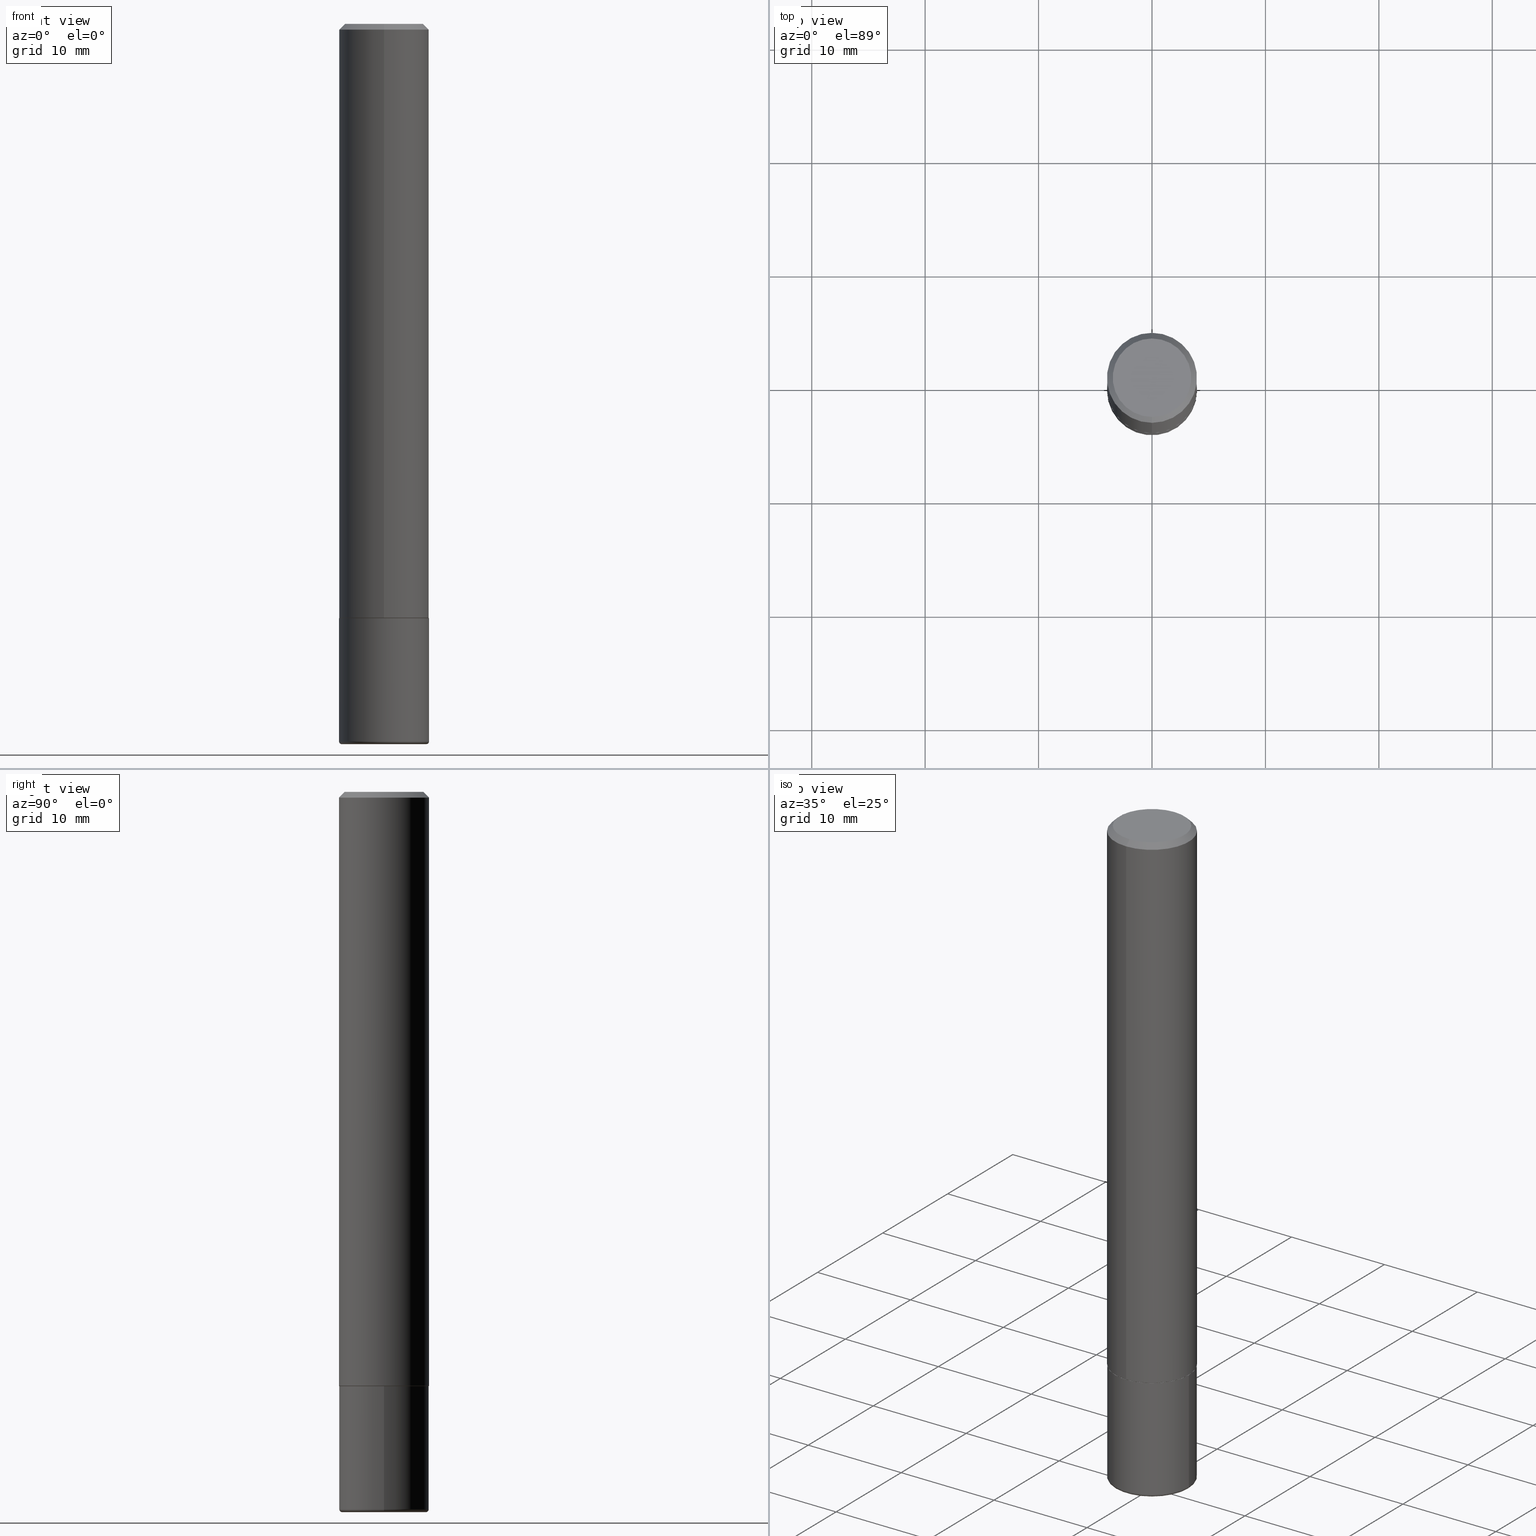
[diagram: canonical four-view strip — front | top / right | iso, engineering-drawing reading convention]
A machine part, canonical four-view strip (front | top / right | iso — engineering-drawing reading convention). The complete STEP part file that produces these views, byte-faithful:
ISO-10303-21;
HEADER;
FILE_DESCRIPTION (( 'STEP AP203' ),
    '1' );
FILE_NAME ('38799.STEP',
    '2024-03-03T13:24:34',
    ( '' ),
    ( '' ),
    'SwSTEP 2.0',
    'SolidWorks 2023',
    '' );
FILE_SCHEMA (( 'CONFIG_CONTROL_DESIGN' ));
ENDSEC;

DATA;
#1 = DATE_AND_TIME ( #260, #135 ) ;
#2 = DIRECTION ( 'NONE',  ( -2.446018690506352654E-29, 3.490693873197692271E-15, 1.000000000000000000 ) ) ;
#3 = CARTESIAN_POINT ( 'NONE',  ( 4.892037381012713785E-31, -6.981387746395396129E-17, -0.02000000000000003511 ) ) ;
#4 = CC_DESIGN_APPROVAL ( #121, ( #296 ) ) ;
#5 = DIRECTION ( 'NONE',  ( -6.982962677686266711E-15, -1.000000000000000000, 3.496765431890256131E-15 ) ) ;
#6 = DIRECTION ( 'NONE',  ( -2.445468806185136597E-29, 3.491481338843145583E-15, 1.000000000000000000 ) ) ;
#7 = PLANE ( 'NONE',  #30 ) ;
#8 = DIRECTION ( 'NONE',  ( -6.982962677686265922E-15, -1.000000000000000000, 3.496765431890251398E-15 ) ) ;
#9 = CIRCLE ( 'NONE', #117, 0.1562500000000002498 ) ;
#10 = VECTOR ( 'NONE', #58, 39.37007874015748143 ) ;
#11 = EDGE_LOOP ( 'NONE', ( #181, #82, #116, #55 ) ) ;
#12 = PERSON_AND_ORGANIZATION ( #175, #85 ) ;
#13 = ORIENTED_EDGE ( 'NONE', *, *, #61, .F. ) ;
#14 = CARTESIAN_POINT ( 'NONE',  ( 0.1462500000000000189, -9.749961638719478451E-15, -2.499999999999999556 ) ) ;
#15 = VERTEX_POINT ( 'NONE', #138 ) ;
#16 = CIRCLE ( 'NONE', #49, 0.1562500000000000278 ) ;
#17 = ORIENTED_EDGE ( 'NONE', *, *, #156, .T. ) ;
#18 = CONICAL_SURFACE ( 'NONE', #377, 0.1552499999999999991, 0.7853981633975336552 ) ;
#19 = EDGE_LOOP ( 'NONE', ( #276, #145, #20, #375 ) ) ;
#20 = ORIENTED_EDGE ( 'NONE', *, *, #91, .T. ) ;
#21 = EDGE_CURVE ( 'NONE', #403, #340, #16, .T. ) ;
#22 = VERTEX_POINT ( 'NONE', #206 ) ;
#23 = DIRECTION ( 'NONE',  ( 7.105427357601001859E-15, 1.000000000000000000, -3.491481338843145583E-15 ) ) ;
#24 = APPROVAL_ROLE ( '' ) ;
#25 = EDGE_LOOP ( 'NONE', ( #119, #44, #112, #414 ) ) ;
#26 = AXIS2_PLACEMENT_3D ( 'NONE', #363, #68, #372 ) ;
#27 = DIRECTION ( 'NONE',  ( -6.982962677686266711E-15, -1.000000000000000000, 3.490693873197693060E-15 ) ) ;
#28 = PERSON_AND_ORGANIZATION_ROLE ( 'creator' ) ;
#29 = CARTESIAN_POINT ( 'NONE',  ( 0.1562500000000000000, -1.091087918388479174E-15, 7.619026212181150377E-30 ) ) ;
#30 = AXIS2_PLACEMENT_3D ( 'NONE', #230, #100, #70 ) ;
#31 = CIRCLE ( 'NONE', #26, 0.009999999999999790307 ) ;
#32 = AXIS2_PLACEMENT_3D ( 'NONE', #390, #261, #386 ) ;
#33 =( LENGTH_UNIT ( ) NAMED_UNIT ( * ) SI_UNIT ( $, .METRE. ) );
#34 = DIRECTION ( 'NONE',  ( -2.446018690506352654E-29, 3.490693873197692271E-15, 1.000000000000000000 ) ) ;
#35 = DIRECTION ( 'NONE',  ( -2.446018690506352654E-29, 3.490693873197692271E-15, 1.000000000000000000 ) ) ;
#36 = CARTESIAN_POINT ( 'NONE',  ( 1.103117597267605822E-15, 0.1552499999999928104, -2.062500000000000888 ) ) ;
#37 = EDGE_LOOP ( 'NONE', ( #139, #381 ) ) ;
#38 = CARTESIAN_POINT ( 'NONE',  ( 0.000000000000000000, 0.000000000000000000, 0.000000000000000000 ) ) ;
#39 = DIRECTION ( 'NONE',  ( 1.000000000000000000, -6.982962677686269077E-15, 0.000000000000000000 ) ) ;
#40 = APPROVAL_ROLE ( '' ) ;
#41 = DIRECTION ( 'NONE',  ( -6.982962677686265922E-15, -1.000000000000000000, 3.490693873197692271E-15 ) ) ;
#42 = ADVANCED_FACE ( 'NONE', ( #264 ), #7, .F. ) ;
#43 = CARTESIAN_POINT ( 'NONE',  ( -0.1562499999999999167, -7.583565509094276753E-15, -2.489999999999999769 ) ) ;
#44 = ORIENTED_EDGE ( 'NONE', *, *, #183, .T. ) ;
#45 = AXIS2_PLACEMENT_3D ( 'NONE', #172, #399, #103 ) ;
#46 = DATE_TIME_ROLE ( 'creation_date' ) ;
#47 = VERTEX_POINT ( 'NONE', #43 ) ;
#48 = DIRECTION ( 'NONE',  ( -6.982962677686265922E-15, -1.000000000000000000, 3.519288880726909138E-15 ) ) ;
#49 = AXIS2_PLACEMENT_3D ( 'NONE', #293, #35, #268 ) ;
#50 = ORIENTED_EDGE ( 'NONE', *, *, #311, .T. ) ;
#51 = CIRCLE ( 'NONE', #168, 0.1562500000000000000 ) ;
#52 = VERTEX_POINT ( 'NONE', #392 ) ;
#53 = DIRECTION ( 'NONE',  ( -6.982962677686265922E-15, -1.000000000000000000, 3.490693873197692271E-15 ) ) ;
#54 = CARTESIAN_POINT ( 'NONE',  ( 6.089217327400989947E-29, -8.693788533719431716E-15, -2.489999999999999769 ) ) ;
#55 = ORIENTED_EDGE ( 'NONE', *, *, #250, .F. ) ;
#56 = SECURITY_CLASSIFICATION ( '', '', #342 ) ;
#57 = DIRECTION ( 'NONE',  ( 2.438088387897960049E-29, -3.491481338843145188E-15, -1.000000000000000000 ) ) ;
#58 = DIRECTION ( 'NONE',  ( -2.445468806185136877E-29, 3.491481338843145188E-15, 1.000000000000000000 ) ) ;
#59 = VECTOR ( 'NONE', #235, 39.37007874015748143 ) ;
#60 = PLANE ( 'NONE',  #413 ) ;
#61 = EDGE_CURVE ( 'NONE', #47, #246, #376, .T. ) ;
#62 = CARTESIAN_POINT ( 'NONE',  ( 0.1562499999999999167, -9.784876452107911678E-15, -2.489999999999999769 ) ) ;
#63 = EDGE_CURVE ( 'NONE', #22, #366, #9, .T. ) ;
#64 = CARTESIAN_POINT ( 'NONE',  ( -0.1562500000000000000, -6.837261372916553606E-15, -2.062500000000000000 ) ) ;
#65 = CYLINDRICAL_SURFACE ( 'NONE', #189, 0.1562500000000000000 ) ;
#66 = CARTESIAN_POINT ( 'NONE',  ( 1.106670310946407312E-15, 0.1552499999999928104, -2.062500000000000888 ) ) ;
#67 = TOROIDAL_SURFACE ( 'NONE', #330, 0.1462500000000000189, 0.009999999999999807654 ) ;
#68 = DIRECTION ( 'NONE',  ( -6.982962677686266711E-15, -1.000000000000000000, 3.491481338843145583E-15 ) ) ;
#69 = CALENDAR_DATE ( 2024, 3, 3 ) ;
#70 = DIRECTION ( 'NONE',  ( -1.000000000000000000, 6.982962677686265922E-15, -4.876176775795935793E-29 ) ) ;
#71 = CC_DESIGN_PERSON_AND_ORGANIZATION_ASSIGNMENT ( #314, #118, ( #205 ) ) ;
#72 = AXIS2_PLACEMENT_3D ( 'NONE', #198, #299, #96 ) ;
#73 =( NAMED_UNIT ( * ) PLANE_ANGLE_UNIT ( ) SI_UNIT ( $, .RADIAN. ) );
#74 = ADVANCED_FACE ( 'NONE', ( #173 ), #67, .T. ) ;
#75 = ORIENTED_EDGE ( 'NONE', *, *, #91, .F. ) ;
#76 = CIRCLE ( 'NONE', #368, 0.1552499999999999991 ) ;
#77 = PERSON_AND_ORGANIZATION ( #175, #85 ) ;
#78 = ORIENTED_EDGE ( 'NONE', *, *, #63, .T. ) ;
#79 = AXIS2_PLACEMENT_3D ( 'NONE', #416, #266, #129 ) ;
#80 = ORIENTED_EDGE ( 'NONE', *, *, #183, .F. ) ;
#81 = APPROVAL ( #208, 'UNSPECIFIED' ) ;
#82 = ORIENTED_EDGE ( 'NONE', *, *, #127, .T. ) ;
#83 = APPROVAL_DATE_TIME ( #1, #121 ) ;
#84 = VECTOR ( 'NONE', #136, 39.37007874015748143 ) ;
#85 = ORGANIZATION ( 'UNSPECIFIED', 'UNSPECIFIED', '' ) ;
#86 = FACE_OUTER_BOUND ( 'NONE', #312, .T. ) ;
#87 = DIRECTION ( 'NONE',  ( -2.445468806185136877E-29, 3.491481338843145188E-15, 1.000000000000000000 ) ) ;
#88 = DIRECTION ( 'NONE',  ( -2.446018690506352654E-29, 3.490693873197692271E-15, 1.000000000000000000 ) ) ;
#89 = FACE_OUTER_BOUND ( 'NONE', #365, .T. ) ;
#90 = CARTESIAN_POINT ( 'NONE',  ( 2.624387123415071162E-48, -3.745242049114306587E-34, -1.072921941929966994E-19 ) ) ;
#91 = EDGE_CURVE ( 'NONE', #22, #340, #383, .T. ) ;
#92 = DIRECTION ( 'NONE',  ( -6.982962677686266711E-15, -1.000000000000000000, 3.490693873197693060E-15 ) ) ;
#93 = ORIENTED_EDGE ( 'NONE', *, *, #159, .F. ) ;
#94 = LINE ( 'NONE', #411, #10 ) ;
#95 = CARTESIAN_POINT ( 'NONE',  ( 2.624387123415071162E-48, -3.745242049114306587E-34, -1.072921941929966994E-19 ) ) ;
#96 = DIRECTION ( 'NONE',  ( 1.000000000000000000, -6.982962677686264344E-15, 0.000000000000000000 ) ) ;
#97 = EDGE_CURVE ( 'NONE', #239, #187, #389, .T. ) ;
#98 = DIRECTION ( 'NONE',  ( 1.000000000000000000, -6.982962677686269077E-15, 0.000000000000000000 ) ) ;
#99 = VECTOR ( 'NONE', #412, 39.37007874015748143 ) ;
#100 = DIRECTION ( 'NONE',  ( 2.438088387897960049E-29, -3.491481338843145188E-15, -1.000000000000000000 ) ) ;
#101 = PERSON_AND_ORGANIZATION ( #175, #85 ) ;
#102 = DIRECTION ( 'NONE',  ( 0.000000000000000000, 0.000000000000000000, 1.000000000000000000 ) ) ;
#103 = DIRECTION ( 'NONE',  ( 1.000000000000000000, -6.982962677686266711E-15, 4.876176775795936353E-29 ) ) ;
#104 = ORIENTED_EDGE ( 'NONE', *, *, #218, .F. ) ;
#105 = ADVANCED_FACE ( 'NONE', ( #188 ), #251, .T. ) ;
#106 = CARTESIAN_POINT ( 'NONE',  ( 9.514286648347541549E-16, 0.1362500000000000377, -4.756606863202822775E-16 ) ) ;
#107 = EDGE_CURVE ( 'NONE', #246, #52, #122, .T. ) ;
#108 = CALENDAR_DATE ( 2024, 3, 3 ) ;
#109 = FACE_OUTER_BOUND ( 'NONE', #25, .T. ) ;
#110 = AXIS2_PLACEMENT_3D ( 'NONE', #406, #255, #169 ) ;
#111 = CC_DESIGN_APPROVAL ( #81, ( #205 ) ) ;
#112 = ORIENTED_EDGE ( 'NONE', *, *, #63, .F. ) ;
#113 = ORIENTED_EDGE ( 'NONE', *, *, #170, .F. ) ;
#114 = ADVANCED_FACE ( 'NONE', ( #224 ), #161, .T. ) ;
#115 = EDGE_LOOP ( 'NONE', ( #402, #217 ) ) ;
#116 = ORIENTED_EDGE ( 'NONE', *, *, #245, .F. ) ;
#117 = AXIS2_PLACEMENT_3D ( 'NONE', #271, #300, #238 ) ;
#118 = PERSON_AND_ORGANIZATION_ROLE ( 'design_supplier' ) ;
#119 = ORIENTED_EDGE ( 'NONE', *, *, #174, .T. ) ;
#120 = ORIENTED_EDGE ( 'NONE', *, *, #146, .F. ) ;
#121 = APPROVAL ( #415, 'UNSPECIFIED' ) ;
#122 = LINE ( 'NONE', #29, #178 ) ;
#123 = DIMENSIONAL_EXPONENTS ( 1.000000000000000000, 0.000000000000000000, 0.000000000000000000, 0.000000000000000000, 0.000000000000000000, 0.000000000000000000, 0.000000000000000000 ) ;
#124 = VECTOR ( 'NONE', #204, 39.37007874015748143 ) ;
#125 = FACE_OUTER_BOUND ( 'NONE', #19, .T. ) ;
#126 = CARTESIAN_POINT ( 'NONE',  ( 0.000000000000000000, 0.000000000000000000, 0.000000000000000000 ) ) ;
#127 = EDGE_CURVE ( 'NONE', #373, #47, #286, .T. ) ;
#128 = COORDINATED_UNIVERSAL_TIME_OFFSET ( 5, 0, .BEHIND. ) ;
#129 = DIRECTION ( 'NONE',  ( 1.000000000000000000, -6.982962677686269077E-15, 0.000000000000000000 ) ) ;
#130 = LENGTH_MEASURE_WITH_UNIT ( LENGTH_MEASURE( 0.02539999999999999897 ), #33 );
#131 = CARTESIAN_POINT ( 'NONE',  ( 1.021258291611616861E-15, 0.1362500000000000377, -4.757143324173787538E-16 ) ) ;
#132 = AXIS2_PLACEMENT_3D ( 'NONE', #185, #23, #313 ) ;
#133 = CYLINDRICAL_SURFACE ( 'NONE', #336, 0.1562500000000001388 ) ;
#134 = CARTESIAN_POINT ( 'NONE',  ( 5.044913549169352611E-29, -7.199556113470241419E-15, -2.062500000000000000 ) ) ;
#135 = LOCAL_TIME ( 8, 24, 34.00000000000000000, #128 ) ;
#136 = DIRECTION ( 'NONE',  ( 5.024295867788490741E-15, 0.7071067811866103003, 0.7071067811864847341 ) ) ;
#137 = CARTESIAN_POINT ( 'NONE',  ( -1.003347832174086278E-15, -0.1362500000000000377, 4.754997480289927501E-16 ) ) ;
#138 = CARTESIAN_POINT ( 'NONE',  ( -1.084104955710742475E-15, -0.1552500000000072156, -2.062499999999999556 ) ) ;
#139 = ORIENTED_EDGE ( 'NONE', *, *, #174, .F. ) ;
#140 = CARTESIAN_POINT ( 'NONE',  ( 0.000000000000000000, 0.000000000000000000, 0.000000000000000000 ) ) ;
#141 = FACE_OUTER_BOUND ( 'NONE', #37, .T. ) ;
#142 = AXIS2_PLACEMENT_3D ( 'NONE', #126, #194, #53 ) ;
#143 = APPROVAL_PERSON_ORGANIZATION ( #77, #323, #24 ) ;
#144 = ADVANCED_FACE ( 'NONE', ( #154 ), #405, .T. ) ;
#145 = ORIENTED_EDGE ( 'NONE', *, *, #146, .T. ) ;
#146 = EDGE_CURVE ( 'NONE', #366, #22, #341, .T. ) ;
#147 = PRODUCT_RELATED_PRODUCT_CATEGORY ( 'detail', '', ( #274 ) ) ;
#148 = CLOSED_SHELL ( 'NONE', ( #180, #74, #42, #231, #144, #285 ) ) ;
#149 = LOCAL_TIME ( 8, 24, 34.00000000000000000, #400 ) ;
#150 = ORIENTED_EDGE ( 'NONE', *, *, #382, .F. ) ;
#151 = ORIENTED_EDGE ( 'NONE', *, *, #21, .T. ) ;
#152 = ADVANCED_FACE ( 'NONE', ( #141 ), #60, .F. ) ;
#153 = VERTEX_POINT ( 'NONE', #66 ) ;
#154 = FACE_OUTER_BOUND ( 'NONE', #308, .T. ) ;
#155 = CIRCLE ( 'NONE', #79, 0.1562500000000000000 ) ;
#156 = EDGE_CURVE ( 'NONE', #15, #22, #209, .T. ) ;
#157 = DIRECTION ( 'NONE',  ( 6.982962677686266711E-15, 1.000000000000000000, -3.496765431890256131E-15 ) ) ;
#158 = COORDINATED_UNIVERSAL_TIME_OFFSET ( 5, 0, .BEHIND. ) ;
#159 = EDGE_CURVE ( 'NONE', #340, #403, #257, .T. ) ;
#160 = CARTESIAN_POINT ( 'NONE',  ( 1.263551563285417854E-28, 6.109479132827826125E-16, -2.500000000000000000 ) ) ;
#161 = CYLINDRICAL_SURFACE ( 'NONE', #142, 0.1562500000000001388 ) ;
#162 = ORIENTED_EDGE ( 'NONE', *, *, #186, .F. ) ;
#163 = PLANE ( 'NONE',  #225 ) ;
#164 = CARTESIAN_POINT ( 'NONE',  ( -0.1462500000000000189, -7.636550052576496041E-15, -2.499999999999999556 ) ) ;
#165 = CARTESIAN_POINT ( 'NONE',  ( 1.091087918388479765E-15, 0.1562499999999999722, -0.02000000000000057981 ) ) ;
#166 = DIRECTION ( 'NONE',  ( -4.937700262164969294E-15, -0.7071067811866054154, 0.7071067811864896191 ) ) ;
#167 = EDGE_LOOP ( 'NONE', ( #404, #211, #259, #150 ) ) ;
#168 = AXIS2_PLACEMENT_3D ( 'NONE', #171, #6, #263 ) ;
#169 = DIRECTION ( 'NONE',  ( 1.000000000000000000, -6.982962677686265922E-15, 4.883557194083112340E-29 ) ) ;
#170 = EDGE_CURVE ( 'NONE', #373, #269, #277, .T. ) ;
#171 = CARTESIAN_POINT ( 'NONE',  ( 6.089217327400989947E-29, -8.693788533719431716E-15, -2.489999999999999769 ) ) ;
#172 = CARTESIAN_POINT ( 'NONE',  ( 0.000000000000000000, 0.000000000000000000, 0.000000000000000000 ) ) ;
#173 = FACE_OUTER_BOUND ( 'NONE', #11, .T. ) ;
#174 = EDGE_CURVE ( 'NONE', #15, #153, #307, .T. ) ;
#175 = PERSON ( 'UNSPECIFIED', 'UNSPECIFIED', 'UNSPECIFIED', ('UNSPECIFIED'), ('UNSPECIFIED'), ('UNSPECIFIED') ) ;
#176 = ORIENTED_EDGE ( 'NONE', *, *, #210, .T. ) ;
#177 = CALENDAR_DATE ( 2024, 3, 3 ) ;
#178 = VECTOR ( 'NONE', #87, 39.37007874015748143 ) ;
#179 = ORIENTED_EDGE ( 'NONE', *, *, #245, .T. ) ;
#180 = ADVANCED_FACE ( 'NONE', ( #297 ), #391, .T. ) ;
#181 = ORIENTED_EDGE ( 'NONE', *, *, #401, .T. ) ;
#182 = COORDINATED_UNIVERSAL_TIME_OFFSET ( 5, 0, .BEHIND. ) ;
#183 = EDGE_CURVE ( 'NONE', #153, #366, #197, .T. ) ;
#184 = ORIENTED_EDGE ( 'NONE', *, *, #401, .F. ) ;
#185 = CARTESIAN_POINT ( 'NONE',  ( -0.1462500000000000189, -7.654619782670285257E-15, -2.489999999999999769 ) ) ;
#186 = EDGE_CURVE ( 'NONE', #187, #340, #360, .T. ) ;
#187 = VERTEX_POINT ( 'NONE', #137 ) ;
#188 = FACE_OUTER_BOUND ( 'NONE', #384, .T. ) ;
#189 = AXIS2_PLACEMENT_3D ( 'NONE', #38, #418, #388 ) ;
#190 = LOCAL_TIME ( 8, 24, 34.00000000000000000, #199 ) ;
#191 = DIRECTION ( 'NONE',  ( -2.446018690506352654E-29, 3.490693873197692271E-15, 1.000000000000000000 ) ) ;
#192 = ORIENTED_EDGE ( 'NONE', *, *, #107, .F. ) ;
#193 = CARTESIAN_POINT ( 'NONE',  ( 5.044913549169352611E-29, -7.199556113470241419E-15, -2.062500000000000000 ) ) ;
#194 = DIRECTION ( 'NONE',  ( -2.446018690506352654E-29, 3.490693873197692271E-15, 1.000000000000000000 ) ) ;
#195 = AXIS2_PLACEMENT_3D ( 'NONE', #358, #201, #39 ) ;
#196 = CONICAL_SURFACE ( 'NONE', #294, 0.1552499999999999991, 0.7853981633975336552 ) ;
#197 = LINE ( 'NONE', #36, #84 ) ;
#198 = CARTESIAN_POINT ( 'NONE',  ( 6.113672015462840371E-29, -8.728703347107863365E-15, -2.499999999999999556 ) ) ;
#199 = COORDINATED_UNIVERSAL_TIME_OFFSET ( 5, 0, .BEHIND. ) ;
#200 = DIRECTION ( 'NONE',  ( -2.446018690506352654E-29, 3.490693873197692271E-15, 1.000000000000000000 ) ) ;
#201 = DIRECTION ( 'NONE',  ( -2.445468806185136597E-29, 3.491481338843145583E-15, 1.000000000000000000 ) ) ;
#202 = EDGE_CURVE ( 'NONE', #187, #239, #397, .T. ) ;
#203 = CLOSED_SHELL ( 'NONE', ( #275, #114, #348, #105, #334, #284, #152, #256 ) ) ;
#204 = DIRECTION ( 'NONE',  ( 4.937700262164542520E-15, 0.7071067811865443531, -0.7071067811865506814 ) ) ;
#205 = PRODUCT_DEFINITION_FORMATION_WITH_SPECIFIED_SOURCE ( 'ANY', '', #274, .NOT_KNOWN. ) ;
#206 = CARTESIAN_POINT ( 'NONE',  ( -1.091087918388430264E-15, -0.1562500000000074385, -2.061499999999999666 ) ) ;
#207 = ADVANCED_BREP_SHAPE_REPRESENTATION ( '38799', ( #234, #369, #327 ), #273 ) ;
#208 = APPROVAL_STATUS ( 'not_yet_approved' ) ;
#209 = LINE ( 'NONE', #272, #346 ) ;
#210 = EDGE_CURVE ( 'NONE', #153, #15, #76, .T. ) ;
#211 = ORIENTED_EDGE ( 'NONE', *, *, #61, .T. ) ;
#212 = DATE_AND_TIME ( #69, #190 ) ;
#213 = DIRECTION ( 'NONE',  ( 1.000000000000000000, 0.000000000000000000, 0.000000000000000000 ) ) ;
#214 = AXIS2_PLACEMENT_3D ( 'NONE', #236, #200, #333 ) ;
#215 = CALENDAR_DATE ( 2024, 3, 3 ) ;
#216 = DIRECTION ( 'NONE',  ( -2.446018690506352654E-29, 3.490693873197692271E-15, 1.000000000000000000 ) ) ;
#217 = ORIENTED_EDGE ( 'NONE', *, *, #382, .T. ) ;
#218 = EDGE_CURVE ( 'NONE', #239, #403, #229, .T. ) ;
#219 = AXIS2_PLACEMENT_3D ( 'NONE', #270, #396, #98 ) ;
#220 = ORIENTED_EDGE ( 'NONE', *, *, #170, .T. ) ;
#221 = ORIENTED_EDGE ( 'NONE', *, *, #97, .F. ) ;
#222 = AXIS2_PLACEMENT_3D ( 'NONE', #95, #34, #92 ) ;
#223 = DIRECTION ( 'NONE',  ( -2.446018690506352654E-29, 3.490693873197692271E-15, 1.000000000000000000 ) ) ;
#224 = FACE_OUTER_BOUND ( 'NONE', #278, .T. ) ;
#225 = AXIS2_PLACEMENT_3D ( 'NONE', #160, #57, #349 ) ;
#226 = DIRECTION ( 'NONE',  ( 2.446018690506352654E-29, -3.490693873197692271E-15, -1.000000000000000000 ) ) ;
#227 = DIRECTION ( 'NONE',  ( -6.982962677686265922E-15, -1.000000000000000000, 3.519288880726909138E-15 ) ) ;
#228 = DIRECTION ( 'NONE',  ( 6.982962677686266711E-15, 1.000000000000000000, -3.496765431890256131E-15 ) ) ;
#229 = LINE ( 'NONE', #165, #124 ) ;
#230 = CARTESIAN_POINT ( 'NONE',  ( 5.043779412756844791E-29, -7.201180261363988578E-15, -2.062500000000000000 ) ) ;
#231 = ADVANCED_FACE ( 'NONE', ( #290 ), #65, .T. ) ;
#232 = EDGE_LOOP ( 'NONE', ( #179, #280, #344, #192 ) ) ;
#233 = CARTESIAN_POINT ( 'NONE',  ( 5.044913549169352611E-29, -7.199556113470241419E-15, -2.062500000000000000 ) ) ;
#234 = MANIFOLD_SOLID_BREP ( 'Body-Move/Copy2[1]', #148 ) ;
#235 = DIRECTION ( 'NONE',  ( -4.851104656540958753E-15, -0.7071067811865492381, -0.7071067811865457964 ) ) ;
#236 = CARTESIAN_POINT ( 'NONE',  ( 5.044913549169352611E-29, -7.199556113470241419E-15, -2.062500000000000000 ) ) ;
#237 = APPROVAL_PERSON_ORGANIZATION ( #356, #121, #345 ) ;
#238 = DIRECTION ( 'NONE',  ( -6.982962677686265922E-15, -1.000000000000000000, 3.496765431890251398E-15 ) ) ;
#239 = VERTEX_POINT ( 'NONE', #131 ) ;
#240 = ORIENTED_EDGE ( 'NONE', *, *, #218, .T. ) ;
#241 = DATE_AND_TIME ( #108, #149 ) ;
#242 = CONICAL_SURFACE ( 'NONE', #331, 0.1562500000000000278, 0.7853981633974472798 ) ;
#243 = APPROVAL_PERSON_ORGANIZATION ( #101, #81, #40 ) ;
#244 = APPLICATION_CONTEXT ( 'configuration controlled 3d designs of mechanical parts and assemblies' ) ;
#245 = EDGE_CURVE ( 'NONE', #246, #47, #51, .T. ) ;
#246 = VERTEX_POINT ( 'NONE', #62 ) ;
#247 = EDGE_CURVE ( 'NONE', #52, #395, #302, .T. ) ;
#248 = DATE_AND_TIME ( #215, #378 ) ;
#249 = EDGE_LOOP ( 'NONE', ( #310, #339, #315, #104 ) ) ;
#250 = EDGE_CURVE ( 'NONE', #269, #246, #31, .T. ) ;
#251 = CONICAL_SURFACE ( 'NONE', #355, 0.1562500000000000278, 0.7853981633974472798 ) ;
#252 = DATE_TIME_ROLE ( 'classification_date' ) ;
#253 = ORIENTED_EDGE ( 'NONE', *, *, #127, .F. ) ;
#254 = CC_DESIGN_DATE_AND_TIME_ASSIGNMENT ( #248, #252, ( #56 ) ) ;
#255 = DIRECTION ( 'NONE',  ( -2.445468806185136597E-29, 3.491481338843145583E-15, 1.000000000000000000 ) ) ;
#256 = ADVANCED_FACE ( 'NONE', ( #364 ), #374, .F. ) ;
#257 = CIRCLE ( 'NONE', #385, 0.1562500000000000278 ) ;
#258 = CARTESIAN_POINT ( 'NONE',  ( -1.071952812151801412E-15, -0.1562500000000001110, -0.01999999999999948694 ) ) ;
#259 = ORIENTED_EDGE ( 'NONE', *, *, #107, .T. ) ;
#260 = CALENDAR_DATE ( 2024, 3, 3 ) ;
#261 = DIRECTION ( 'NONE',  ( -2.445468806185136597E-29, 3.491481338843145583E-15, 1.000000000000000000 ) ) ;
#262 = PRODUCT_DEFINITION_SHAPE ( 'NONE', 'NONE',  #296 ) ;
#263 = DIRECTION ( 'NONE',  ( 1.000000000000000000, -6.982962677686269077E-15, 0.000000000000000000 ) ) ;
#264 = FACE_OUTER_BOUND ( 'NONE', #115, .T. ) ;
#265 = AXIS2_PLACEMENT_3D ( 'NONE', #90, #88, #27 ) ;
#266 = DIRECTION ( 'NONE',  ( -2.445468806185136597E-29, 3.491481338843145583E-15, 1.000000000000000000 ) ) ;
#267 = DIRECTION ( 'NONE',  ( -2.446018690506352373E-29, 3.490693873197692271E-15, 1.000000000000000000 ) ) ;
#268 = DIRECTION ( 'NONE',  ( -6.982962677686266711E-15, -1.000000000000000000, 3.496765431890256131E-15 ) ) ;
#269 = VERTEX_POINT ( 'NONE', #14 ) ;
#270 = CARTESIAN_POINT ( 'NONE',  ( 5.043779412756844791E-29, -7.201180261363988578E-15, -2.062500000000000000 ) ) ;
#271 = CARTESIAN_POINT ( 'NONE',  ( 5.042467530478845729E-29, -7.196065419597043772E-15, -2.061500000000000110 ) ) ;
#272 = CARTESIAN_POINT ( 'NONE',  ( -1.084104955710742475E-15, -0.1552500000000072156, -2.062499999999999556 ) ) ;
#273 =( GEOMETRIC_REPRESENTATION_CONTEXT ( 3 ) GLOBAL_UNCERTAINTY_ASSIGNED_CONTEXT ( ( #281 ) ) GLOBAL_UNIT_ASSIGNED_CONTEXT ( ( #357, #73, #393 ) ) REPRESENTATION_CONTEXT ( 'NONE', 'WORKASPACE' ) );
#274 = PRODUCT ( '38799', '38799', '', ( #337 ) ) ;
#275 = ADVANCED_FACE ( 'NONE', ( #109 ), #196, .T. ) ;
#276 = ORIENTED_EDGE ( 'NONE', *, *, #311, .F. ) ;
#277 = CIRCLE ( 'NONE', #72, 0.1462500000000000189 ) ;
#278 = EDGE_LOOP ( 'NONE', ( #78, #50, #93, #75 ) ) ;
#279 = PERSON_AND_ORGANIZATION_ROLE ( 'creator' ) ;
#280 = ORIENTED_EDGE ( 'NONE', *, *, #319, .T. ) ;
#281 = UNCERTAINTY_MEASURE_WITH_UNIT (LENGTH_MEASURE( 1.000000000000000082E-05 ), #357, 'distance_accuracy_value', 'NONE');
#282 = CARTESIAN_POINT ( 'NONE',  ( 5.042467530478845729E-29, -7.196065419597043772E-15, -2.061500000000000110 ) ) ;
#283 = DESIGN_CONTEXT ( 'detailed design', #332, 'design' ) ;
#284 = ADVANCED_FACE ( 'NONE', ( #86 ), #18, .T. ) ;
#285 = ADVANCED_FACE ( 'NONE', ( #89 ), #163, .T. ) ;
#286 = CIRCLE ( 'NONE', #132, 0.009999999999999790307 ) ;
#287 = ORIENTED_EDGE ( 'NONE', *, *, #97, .T. ) ;
#288 = FACE_OUTER_BOUND ( 'NONE', #249, .T. ) ;
#289 = DIRECTION ( 'NONE',  ( -2.445468806185136597E-29, 3.491481338843145583E-15, 1.000000000000000000 ) ) ;
#290 = FACE_OUTER_BOUND ( 'NONE', #167, .T. ) ;
#291 = CARTESIAN_POINT ( 'NONE',  ( 1.110223024625157329E-15, 0.1562500000000001388, -5.454209176871399228E-16 ) ) ;
#292 = DIRECTION ( 'NONE',  ( -2.446018690506352654E-29, 3.490693873197692271E-15, 1.000000000000000000 ) ) ;
#293 = CARTESIAN_POINT ( 'NONE',  ( 4.892037381012713785E-31, -6.981387746395396129E-17, -0.02000000000000003511 ) ) ;
#294 = AXIS2_PLACEMENT_3D ( 'NONE', #233, #216, #48 ) ;
#295 = CC_DESIGN_APPROVAL ( #323, ( #56 ) ) ;
#296 = PRODUCT_DEFINITION ( 'UNKNOWN', '', #205, #283 ) ;
#297 = FACE_OUTER_BOUND ( 'NONE', #232, .T. ) ;
#298 = APPLICATION_PROTOCOL_DEFINITION ( 'international standard', 'config_control_design', 1994, #244 ) ;
#299 = DIRECTION ( 'NONE',  ( -2.445468806185136597E-29, 3.491481338843145583E-15, 1.000000000000000000 ) ) ;
#300 = DIRECTION ( 'NONE',  ( -2.446018690506352654E-29, 3.490693873197692271E-15, 1.000000000000000000 ) ) ;
#301 = APPROVAL_DATE_TIME ( #212, #81 ) ;
#302 = CIRCLE ( 'NONE', #219, 0.1562500000000000000 ) ;
#303 = CC_DESIGN_PERSON_AND_ORGANIZATION_ASSIGNMENT ( #318, #28, ( #296 ) ) ;
#304 = DIRECTION ( 'NONE',  ( 2.446018690506352373E-29, -3.490693873197692271E-15, -1.000000000000000000 ) ) ;
#305 = PERSON_AND_ORGANIZATION_ROLE ( 'classification_officer' ) ;
#306 = DIRECTION ( 'NONE',  ( 6.982962677686265922E-15, 1.000000000000000000, -3.490693873197692271E-15 ) ) ;
#307 = CIRCLE ( 'NONE', #214, 0.1552499999999999991 ) ;
#308 = EDGE_LOOP ( 'NONE', ( #253, #220, #317, #13 ) ) ;
#309 = PERSON_AND_ORGANIZATION ( #175, #85 ) ;
#310 = ORIENTED_EDGE ( 'NONE', *, *, #202, .F. ) ;
#311 = EDGE_CURVE ( 'NONE', #366, #403, #409, .T. ) ;
#312 = EDGE_LOOP ( 'NONE', ( #80, #176, #17, #120 ) ) ;
#313 = DIRECTION ( 'NONE',  ( -1.000000000000000000, 7.105427357600978193E-15, 0.000000000000000000 ) ) ;
#314 = PERSON_AND_ORGANIZATION ( #175, #85 ) ;
#315 = ORIENTED_EDGE ( 'NONE', *, *, #159, .T. ) ;
#316 = CIRCLE ( 'NONE', #32, 0.1462500000000000189 ) ;
#317 = ORIENTED_EDGE ( 'NONE', *, *, #250, .T. ) ;
#318 = PERSON_AND_ORGANIZATION ( #175, #85 ) ;
#319 = EDGE_CURVE ( 'NONE', #47, #395, #94, .T. ) ;
#320 = DIRECTION ( 'NONE',  ( -6.982962677686265922E-15, -1.000000000000000000, 3.490693873197692271E-15 ) ) ;
#321 = DIRECTION ( 'NONE',  ( 2.446018690506352654E-29, -3.490693873197692271E-15, -1.000000000000000000 ) ) ;
#322 = APPLICATION_PROTOCOL_DEFINITION ( 'international standard', 'config_control_design', 1994, #332 ) ;
#323 = APPROVAL ( #380, 'UNSPECIFIED' ) ;
#324 = CARTESIAN_POINT ( 'NONE',  ( 4.892037381012713785E-31, -6.981387746395396129E-17, -0.02000000000000003511 ) ) ;
#325 = AXIS2_PLACEMENT_3D ( 'NONE', #282, #292, #8 ) ;
#326 = AXIS2_PLACEMENT_3D ( 'NONE', #106, #304, #306 ) ;
#327 = AXIS2_PLACEMENT_3D ( 'NONE', #140, #102, #213 ) ;
#328 = CARTESIAN_POINT ( 'NONE',  ( 0.000000000000000000, 0.000000000000000000, 0.000000000000000000 ) ) ;
#329 = CARTESIAN_POINT ( 'NONE',  ( -1.071952812151801412E-15, -0.1562500000000001110, -0.01999999999999948694 ) ) ;
#330 = AXIS2_PLACEMENT_3D ( 'NONE', #54, #289, #410 ) ;
#331 = AXIS2_PLACEMENT_3D ( 'NONE', #359, #226, #228 ) ;
#332 = APPLICATION_CONTEXT ( 'configuration controlled 3d designs of mechanical parts and assemblies' ) ;
#333 = DIRECTION ( 'NONE',  ( -6.982962677686265922E-15, -1.000000000000000000, 3.519288880726909138E-15 ) ) ;
#334 = ADVANCED_FACE ( 'NONE', ( #125 ), #133, .T. ) ;
#335 = EDGE_LOOP ( 'NONE', ( #287, #379 ) ) ;
#336 = AXIS2_PLACEMENT_3D ( 'NONE', #328, #2, #320 ) ;
#337 = MECHANICAL_CONTEXT ( 'NONE', #244, 'mechanical' ) ;
#338 = SHAPE_DEFINITION_REPRESENTATION ( #262, #207 ) ;
#339 = ORIENTED_EDGE ( 'NONE', *, *, #186, .T. ) ;
#340 = VERTEX_POINT ( 'NONE', #258 ) ;
#341 = CIRCLE ( 'NONE', #325, 0.1562500000000002498 ) ;
#342 = SECURITY_CLASSIFICATION_LEVEL ( 'unclassified' ) ;
#343 = CC_DESIGN_PERSON_AND_ORGANIZATION_ASSIGNMENT ( #309, #305, ( #56 ) ) ;
#344 = ORIENTED_EDGE ( 'NONE', *, *, #247, .F. ) ;
#345 = APPROVAL_ROLE ( '' ) ;
#346 = VECTOR ( 'NONE', #166, 39.37007874015748143 ) ;
#347 = CC_DESIGN_SECURITY_CLASSIFICATION ( #56, ( #205 ) ) ;
#348 = ADVANCED_FACE ( 'NONE', ( #288 ), #242, .T. ) ;
#349 = DIRECTION ( 'NONE',  ( -1.000000000000000000, 6.982962677686265922E-15, -4.876176775795935793E-29 ) ) ;
#350 = CC_DESIGN_PERSON_AND_ORGANIZATION_ASSIGNMENT ( #352, #407, ( #274 ) ) ;
#351 = CARTESIAN_POINT ( 'NONE',  ( 1.110223024625183362E-15, 0.1562499999999930334, -2.061500000000000554 ) ) ;
#352 = PERSON_AND_ORGANIZATION ( #175, #85 ) ;
#353 = CARTESIAN_POINT ( 'NONE',  ( 1.091087918388479765E-15, 0.1562499999999999722, -0.02000000000000057981 ) ) ;
#354 = DIRECTION ( 'NONE',  ( -2.446018690506352654E-29, 3.490693873197692271E-15, 1.000000000000000000 ) ) ;
#355 = AXIS2_PLACEMENT_3D ( 'NONE', #324, #321, #157 ) ;
#356 = PERSON_AND_ORGANIZATION ( #175, #85 ) ;
#357 =( CONVERSION_BASED_UNIT ( 'INCH', #130 ) LENGTH_UNIT ( ) NAMED_UNIT ( #123 ) );
#358 = CARTESIAN_POINT ( 'NONE',  ( 6.089217327400989947E-29, -8.693788533719431716E-15, -2.489999999999999769 ) ) ;
#359 = CARTESIAN_POINT ( 'NONE',  ( 4.892037381012713785E-31, -6.981387746395396129E-17, -0.02000000000000003511 ) ) ;
#360 = LINE ( 'NONE', #329, #59 ) ;
#361 = DIRECTION ( 'NONE',  ( -2.446018690506352654E-29, 3.490693873197692271E-15, 1.000000000000000000 ) ) ;
#362 = VECTOR ( 'NONE', #191, 39.37007874015748143 ) ;
#363 = CARTESIAN_POINT ( 'NONE',  ( 0.1462500000000000189, -9.715046825331048380E-15, -2.489999999999999769 ) ) ;
#364 = FACE_OUTER_BOUND ( 'NONE', #335, .T. ) ;
#365 = EDGE_LOOP ( 'NONE', ( #184, #113 ) ) ;
#366 = VERTEX_POINT ( 'NONE', #351 ) ;
#367 = APPROVAL_DATE_TIME ( #241, #323 ) ;
#368 = AXIS2_PLACEMENT_3D ( 'NONE', #394, #361, #227 ) ;
#369 = MANIFOLD_SOLID_BREP ( 'Body-Move/Copy2[2]', #203 ) ;
#370 = LOCAL_TIME ( 8, 24, 34.00000000000000000, #158 ) ;
#371 = CC_DESIGN_DATE_AND_TIME_ASSIGNMENT ( #398, #46, ( #296 ) ) ;
#372 = DIRECTION ( 'NONE',  ( 1.000000000000000000, -6.982962677686284854E-15, 0.000000000000000000 ) ) ;
#373 = VERTEX_POINT ( 'NONE', #164 ) ;
#374 = PLANE ( 'NONE',  #326 ) ;
#375 = ORIENTED_EDGE ( 'NONE', *, *, #21, .F. ) ;
#376 = CIRCLE ( 'NONE', #195, 0.1562500000000000000 ) ;
#377 = AXIS2_PLACEMENT_3D ( 'NONE', #193, #223, #387 ) ;
#378 = LOCAL_TIME ( 8, 24, 34.00000000000000000, #182 ) ;
#379 = ORIENTED_EDGE ( 'NONE', *, *, #202, .T. ) ;
#380 = APPROVAL_STATUS ( 'not_yet_approved' ) ;
#381 = ORIENTED_EDGE ( 'NONE', *, *, #210, .F. ) ;
#382 = EDGE_CURVE ( 'NONE', #395, #52, #155, .T. ) ;
#383 = LINE ( 'NONE', #417, #99 ) ;
#384 = EDGE_LOOP ( 'NONE', ( #162, #221, #240, #151 ) ) ;
#385 = AXIS2_PLACEMENT_3D ( 'NONE', #3, #354, #5 ) ;
#386 = DIRECTION ( 'NONE',  ( 1.000000000000000000, -6.982962677686264344E-15, 0.000000000000000000 ) ) ;
#387 = DIRECTION ( 'NONE',  ( -6.982962677686265922E-15, -1.000000000000000000, 3.519288880726909138E-15 ) ) ;
#388 = DIRECTION ( 'NONE',  ( 1.000000000000000000, -6.982962677686266711E-15, 4.876176775795936353E-29 ) ) ;
#389 = CIRCLE ( 'NONE', #265, 0.1362500000000000377 ) ;
#390 = CARTESIAN_POINT ( 'NONE',  ( 6.113672015462840371E-29, -8.728703347107863365E-15, -2.499999999999999556 ) ) ;
#391 = CYLINDRICAL_SURFACE ( 'NONE', #45, 0.1562500000000000000 ) ;
#392 = CARTESIAN_POINT ( 'NONE',  ( 0.1562500000000000000, -8.292268179752468540E-15, -2.062500000000000000 ) ) ;
#393 =( NAMED_UNIT ( * ) SI_UNIT ( $, .STERADIAN. ) SOLID_ANGLE_UNIT ( ) );
#394 = CARTESIAN_POINT ( 'NONE',  ( 5.044913549169352611E-29, -7.199556113470241419E-15, -2.062500000000000000 ) ) ;
#395 = VERTEX_POINT ( 'NONE', #64 ) ;
#396 = DIRECTION ( 'NONE',  ( -2.445468806185136597E-29, 3.491481338843145583E-15, 1.000000000000000000 ) ) ;
#397 = CIRCLE ( 'NONE', #222, 0.1362500000000000377 ) ;
#398 = DATE_AND_TIME ( #177, #370 ) ;
#399 = DIRECTION ( 'NONE',  ( -2.445468806185136597E-29, 3.491481338843145583E-15, 1.000000000000000000 ) ) ;
#400 = COORDINATED_UNIVERSAL_TIME_OFFSET ( 5, 0, .BEHIND. ) ;
#401 = EDGE_CURVE ( 'NONE', #269, #373, #316, .T. ) ;
#402 = ORIENTED_EDGE ( 'NONE', *, *, #247, .T. ) ;
#403 = VERTEX_POINT ( 'NONE', #353 ) ;
#404 = ORIENTED_EDGE ( 'NONE', *, *, #319, .F. ) ;
#405 = TOROIDAL_SURFACE ( 'NONE', #110, 0.1462500000000000189, 0.009999999999999807654 ) ;
#406 = CARTESIAN_POINT ( 'NONE',  ( 6.089217327400989947E-29, -8.693788533719431716E-15, -2.489999999999999769 ) ) ;
#407 = PERSON_AND_ORGANIZATION_ROLE ( 'design_owner' ) ;
#408 = CC_DESIGN_PERSON_AND_ORGANIZATION_ASSIGNMENT ( #12, #279, ( #205 ) ) ;
#409 = LINE ( 'NONE', #291, #362 ) ;
#410 = DIRECTION ( 'NONE',  ( 1.000000000000000000, -6.982962677686265922E-15, 4.883557194083112340E-29 ) ) ;
#411 = CARTESIAN_POINT ( 'NONE',  ( -0.1562500000000000000, 1.110223024625156540E-15, -7.685836078523291160E-30 ) ) ;
#412 = DIRECTION ( 'NONE',  ( -2.446018690506352654E-29, 3.490693873197692271E-15, 1.000000000000000000 ) ) ;
#413 = AXIS2_PLACEMENT_3D ( 'NONE', #134, #267, #41 ) ;
#414 = ORIENTED_EDGE ( 'NONE', *, *, #156, .F. ) ;
#415 = APPROVAL_STATUS ( 'not_yet_approved' ) ;
#416 = CARTESIAN_POINT ( 'NONE',  ( 5.043779412756844791E-29, -7.201180261363988578E-15, -2.062500000000000000 ) ) ;
#417 = CARTESIAN_POINT ( 'NONE',  ( -1.091087918388479962E-15, -0.1562500000000001388, 5.454209176871399228E-16 ) ) ;
#418 = DIRECTION ( 'NONE',  ( -2.445468806185136597E-29, 3.491481338843145583E-15, 1.000000000000000000 ) ) ;
ENDSEC;
END-ISO-10303-21;
